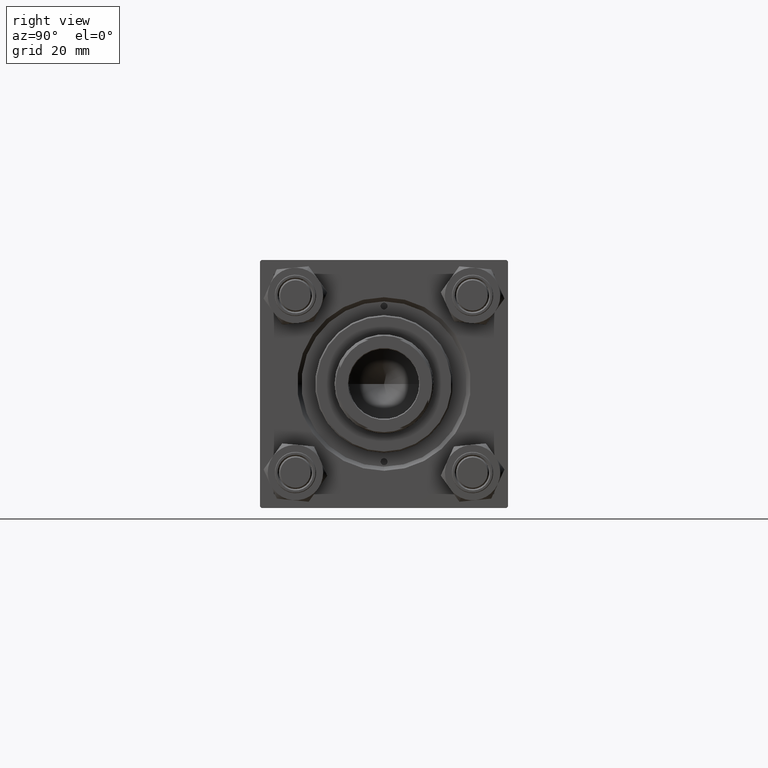
[diagram: clean part render]
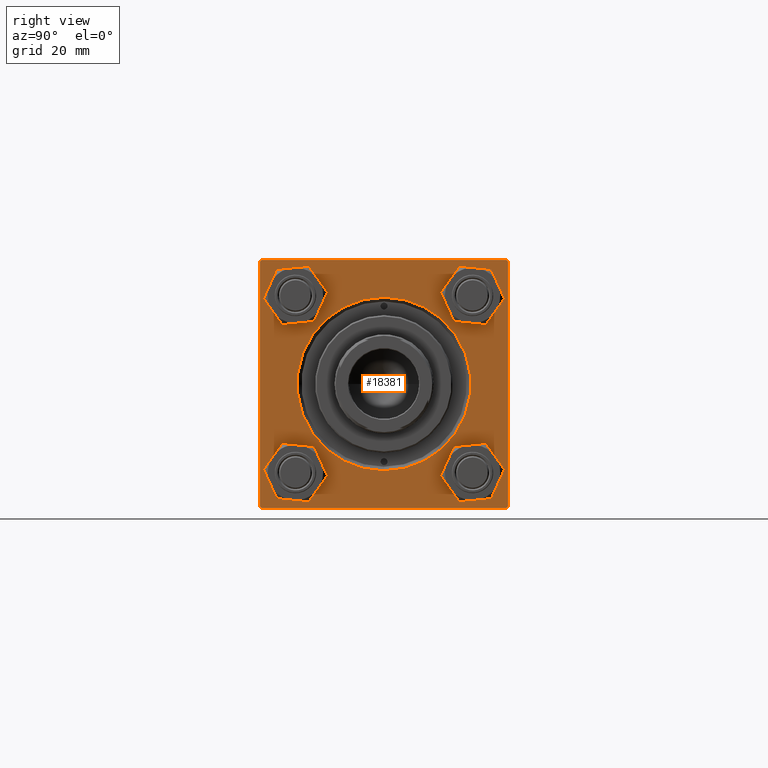
[diagram: same view with one face highlighted and labeled with its STEP entity id]
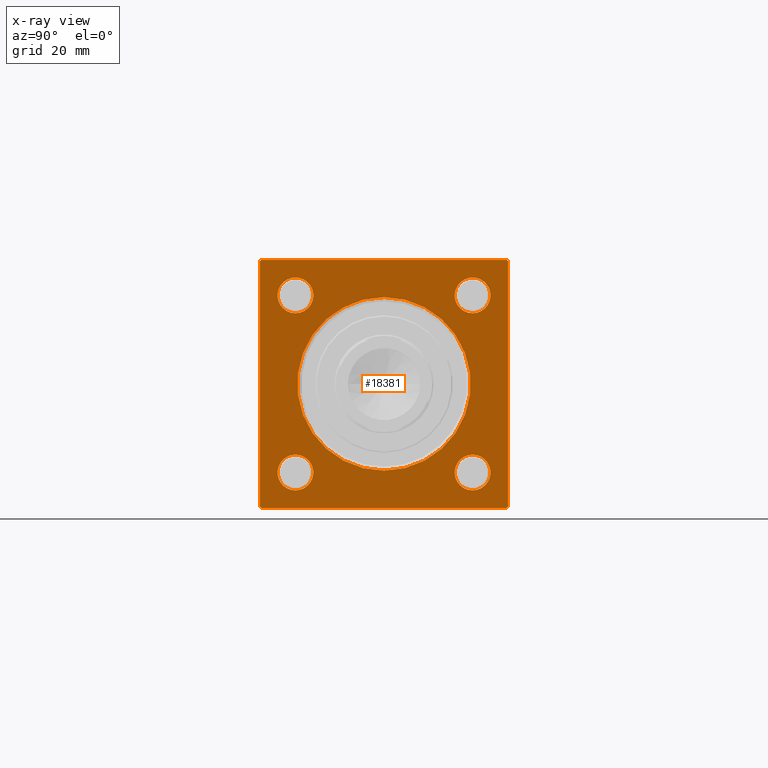
[diagram: x-ray of the same camera — body ghosted, the highlighted face saturated]
A machine part, right view. The second image highlights one B-rep face of the part: STEP entity #18381.
The next image is the same camera in x-ray: the body ghosted, the highlighted face saturated — about 0% of this face is hidden behind the body in this view.
In plain terms, the highlighted planar face has unit normal (-1, 0, 0).
Its self-contained STEP definition (entity closure, byte-faithful):
#450 = VERTEX_POINT ( 'NONE', #44718 ) ;
#1075 = CARTESIAN_POINT ( 'NONE',  ( 155.0000000000000000, 0.000000000000000000, 0.000000000000000000 ) ) ;
#1373 = EDGE_LOOP ( 'NONE', ( #2650, #42296 ) ) ;
#1707 = LINE ( 'NONE', #5979, #36624 ) ;
#1844 = DIRECTION ( 'NONE',  ( -1.000000000000000000, -0.000000000000000000, -0.000000000000000000 ) ) ;
#2018 = VERTEX_POINT ( 'NONE', #31920 ) ;
#2650 = ORIENTED_EDGE ( 'NONE', *, *, #15215, .T. ) ;
#2767 = VECTOR ( 'NONE', #14427, 1000.000000000000000 ) ;
#3015 = DIRECTION ( 'NONE',  ( 0.000000000000000000, 0.000000000000000000, 1.000000000000000000 ) ) ;
#3090 = VERTEX_POINT ( 'NONE', #26521 ) ;
#3573 = FACE_BOUND ( 'NONE', #11238, .T. ) ;
#3862 = DIRECTION ( 'NONE',  ( 0.000000000000000000, 0.000000000000000000, -1.000000000000000000 ) ) ;
#3996 = DIRECTION ( 'NONE',  ( 0.000000000000000000, 0.000000000000000000, 1.000000000000000000 ) ) ;
#4157 = ORIENTED_EDGE ( 'NONE', *, *, #26422, .T. ) ;
#4374 = DIRECTION ( 'NONE',  ( 0.000000000000000000, 0.000000000000000000, 1.000000000000000000 ) ) ;
#4737 = CARTESIAN_POINT ( 'NONE',  ( 155.0000000000000000, 32.14999999999999147, -25.64999999999994529 ) ) ;
#4952 = CARTESIAN_POINT ( 'NONE',  ( 155.0000000000000000, 45.00000000000001421, -44.49999999999997158 ) ) ;
#4963 = VERTEX_POINT ( 'NONE', #49618 ) ;
#5341 = AXIS2_PLACEMENT_3D ( 'NONE', #23153, #46650, #3996 ) ;
#5364 = CARTESIAN_POINT ( 'NONE',  ( 155.0000000000000000, 32.14999999999999147, 32.15000000000000568 ) ) ;
#5404 = ORIENTED_EDGE ( 'NONE', *, *, #16303, .T. ) ;
#5794 = EDGE_CURVE ( 'NONE', #16152, #41936, #30278, .T. ) ;
#5875 = DIRECTION ( 'NONE',  ( 0.000000000000000000, 0.000000000000000000, 1.000000000000000000 ) ) ;
#5979 = CARTESIAN_POINT ( 'NONE',  ( 155.0000000000000000, 45.00000000000001421, -45.00000000000000000 ) ) ;
#6109 = DIRECTION ( 'NONE',  ( 0.000000000000000000, 0.000000000000000000, 1.000000000000000000 ) ) ;
#6962 = EDGE_LOOP ( 'NONE', ( #47357, #5404 ) ) ;
#7007 = VECTOR ( 'NONE', #23520, 1000.000000000000000 ) ;
#7133 = CARTESIAN_POINT ( 'NONE',  ( 155.0000000000000000, 44.49999999999998579, 45.00000000000000000 ) ) ;
#7755 = CARTESIAN_POINT ( 'NONE',  ( 155.0000000000000000, 3.857637417314162689E-15, 31.50000000000000000 ) ) ;
#8144 = ORIENTED_EDGE ( 'NONE', *, *, #22962, .T. ) ;
#8366 = CARTESIAN_POINT ( 'NONE',  ( 155.0000000000000000, -32.14999999999997726, 32.15000000000001279 ) ) ;
#8423 = AXIS2_PLACEMENT_3D ( 'NONE', #49523, #26516, #37425 ) ;
#8659 = EDGE_CURVE ( 'NONE', #18554, #48266, #30132, .T. ) ;
#8729 = ORIENTED_EDGE ( 'NONE', *, *, #21036, .T. ) ;
#9004 = DIRECTION ( 'NONE',  ( 0.000000000000000000, 0.000000000000000000, 1.000000000000000000 ) ) ;
#9283 = CARTESIAN_POINT ( 'NONE',  ( 155.0000000000000000, 32.14999999999999147, -32.15000000000000568 ) ) ;
#9308 = CIRCLE ( 'NONE', #34288, 31.50000000000000000 ) ;
#9648 = LINE ( 'NONE', #17469, #18229 ) ;
#9826 = CARTESIAN_POINT ( 'NONE',  ( 155.0000000000000000, -32.14999999999997726, -32.15000000000001279 ) ) ;
#10385 = CARTESIAN_POINT ( 'NONE',  ( 155.0000000000000000, -44.49999999999992895, -45.00000000000000000 ) ) ;
#10641 = CIRCLE ( 'NONE', #38838, 6.500000000000061284 ) ;
#10974 = DIRECTION ( 'NONE',  ( -0.000000000000000000, -0.7071067811865474617, -0.7071067811865474617 ) ) ;
#11189 = CARTESIAN_POINT ( 'NONE',  ( 155.0000000000000000, 45.00000000000001421, 45.00000000000000000 ) ) ;
#11192 = CARTESIAN_POINT ( 'NONE',  ( 155.0000000000000000, -45.00000000000000000, 44.99999999999998579 ) ) ;
#11238 = EDGE_LOOP ( 'NONE', ( #8729, #28103 ) ) ;
#12151 = EDGE_CURVE ( 'NONE', #49901, #16003, #10641, .T. ) ;
#12277 = CARTESIAN_POINT ( 'NONE',  ( 155.0000000000000000, -32.14999999999997726, -38.65000000000007674 ) ) ;
#12942 = ORIENTED_EDGE ( 'NONE', *, *, #22224, .T. ) ;
#13149 = CARTESIAN_POINT ( 'NONE',  ( 155.0000000000000000, -44.49999999999994316, 44.99999999999998579 ) ) ;
#13354 = CARTESIAN_POINT ( 'NONE',  ( 155.0000000000000000, 44.49999999999998579, 45.00000000000000000 ) ) ;
#13367 = DIRECTION ( 'NONE',  ( -1.000000000000000000, -0.000000000000000000, -0.000000000000000000 ) ) ;
#13412 = CIRCLE ( 'NONE', #5341, 6.500000000000061284 ) ;
#13413 = EDGE_CURVE ( 'NONE', #15645, #20741, #41719, .T. ) ;
#13891 = VECTOR ( 'NONE', #18020, 1000.000000000000114 ) ;
#14427 = DIRECTION ( 'NONE',  ( 0.000000000000000000, 0.7071067811865524577, -0.7071067811865426878 ) ) ;
#14814 = CARTESIAN_POINT ( 'NONE',  ( 155.0000000000000000, -44.49999999999990052, -45.00000000000000000 ) ) ;
#15215 = EDGE_CURVE ( 'NONE', #16003, #49901, #42182, .T. ) ;
#15645 = VERTEX_POINT ( 'NONE', #28740 ) ;
#16001 = CARTESIAN_POINT ( 'NONE',  ( 155.0000000000000000, 32.14999999999999147, 25.64999999999994529 ) ) ;
#16003 = VERTEX_POINT ( 'NONE', #12277 ) ;
#16027 = AXIS2_PLACEMENT_3D ( 'NONE', #1075, #42486, #4374 ) ;
#16152 = VERTEX_POINT ( 'NONE', #18471 ) ;
#16303 = EDGE_CURVE ( 'NONE', #4963, #17586, #46229, .T. ) ;
#17451 = CIRCLE ( 'NONE', #31933, 6.500000000000061284 ) ;
#17469 = CARTESIAN_POINT ( 'NONE',  ( 155.0000000000000000, 45.00000000000001421, -44.50000000000000000 ) ) ;
#17586 = VERTEX_POINT ( 'NONE', #49423 ) ;
#17687 = EDGE_CURVE ( 'NONE', #2018, #41936, #1707, .T. ) ;
#18020 = DIRECTION ( 'NONE',  ( 0.000000000000000000, -0.7071067811865474617, 0.7071067811865474617 ) ) ;
#18208 = DIRECTION ( 'NONE',  ( -1.000000000000000000, -0.000000000000000000, -0.000000000000000000 ) ) ;
#18229 = VECTOR ( 'NONE', #43474, 1000.000000000000114 ) ;
#18381 = ADVANCED_FACE ( 'NONE', ( #35914, #38144, #49042, #33862, #3573, #37662 ), #33625, .F. ) ;
#18471 = CARTESIAN_POINT ( 'NONE',  ( 155.0000000000000000, -44.99999999999999289, -44.49999999999991473 ) ) ;
#18554 = VERTEX_POINT ( 'NONE', #13149 ) ;
#18968 = VERTEX_POINT ( 'NONE', #21401 ) ;
#19028 = VECTOR ( 'NONE', #3862, 1000.000000000000000 ) ;
#19149 = AXIS2_PLACEMENT_3D ( 'NONE', #48293, #18208, #6109 ) ;
#19818 = ORIENTED_EDGE ( 'NONE', *, *, #17687, .F. ) ;
#20343 = CARTESIAN_POINT ( 'NONE',  ( 155.0000000000000000, 0.000000000000000000, 0.000000000000000000 ) ) ;
#20736 = DIRECTION ( 'NONE',  ( 0.000000000000000000, -1.000000000000000000, -1.541976423090495140E-16 ) ) ;
#20741 = VERTEX_POINT ( 'NONE', #13354 ) ;
#21036 = EDGE_CURVE ( 'NONE', #18968, #23935, #9308, .T. ) ;
#21401 = CARTESIAN_POINT ( 'NONE',  ( 155.0000000000000000, 0.000000000000000000, -31.50000000000000000 ) ) ;
#21479 = CIRCLE ( 'NONE', #27887, 6.500000000000061284 ) ;
#21923 = VECTOR ( 'NONE', #10974, 1000.000000000000114 ) ;
#22178 = EDGE_CURVE ( 'NONE', #20741, #18554, #25024, .T. ) ;
#22224 = EDGE_CURVE ( 'NONE', #2018, #39396, #9648, .T. ) ;
#22641 = CARTESIAN_POINT ( 'NONE',  ( 155.0000000000000000, -32.14999999999997726, -25.64999999999994884 ) ) ;
#22662 = DIRECTION ( 'NONE',  ( -1.000000000000000000, -0.000000000000000000, -0.000000000000000000 ) ) ;
#22962 = EDGE_CURVE ( 'NONE', #450, #38852, #23854, .T. ) ;
#23153 = CARTESIAN_POINT ( 'NONE',  ( 155.0000000000000000, 32.14999999999999147, 32.15000000000000568 ) ) ;
#23245 = DIRECTION ( 'NONE',  ( 0.000000000000000000, 0.000000000000000000, 1.000000000000000000 ) ) ;
#23520 = DIRECTION ( 'NONE',  ( 0.000000000000000000, 7.709882115452478166E-17, -1.000000000000000000 ) ) ;
#23732 = DIRECTION ( 'NONE',  ( -1.000000000000000000, -0.000000000000000000, -0.000000000000000000 ) ) ;
#23820 = VECTOR ( 'NONE', #20736, 1000.000000000000000 ) ;
#23854 = CIRCLE ( 'NONE', #26279, 6.500000000000061284 ) ;
#23894 = DIRECTION ( 'NONE',  ( -1.000000000000000000, -0.000000000000000000, -0.000000000000000000 ) ) ;
#23935 = VERTEX_POINT ( 'NONE', #7755 ) ;
#24252 = EDGE_CURVE ( 'NONE', #48266, #16152, #34914, .T. ) ;
#24457 = AXIS2_PLACEMENT_3D ( 'NONE', #8366, #23732, #23245 ) ;
#24769 = CARTESIAN_POINT ( 'NONE',  ( 155.0000000000000000, 45.00000000000001421, 45.00000000000000000 ) ) ;
#25024 = LINE ( 'NONE', #24769, #23820 ) ;
#25441 = DIRECTION ( 'NONE',  ( 0.000000000000000000, 0.000000000000000000, 1.000000000000000000 ) ) ;
#26071 = LINE ( 'NONE', #11189, #19028 ) ;
#26196 = EDGE_CURVE ( 'NONE', #38852, #450, #13412, .T. ) ;
#26279 = AXIS2_PLACEMENT_3D ( 'NONE', #5364, #1844, #5875 ) ;
#26422 = EDGE_CURVE ( 'NONE', #37311, #3090, #17451, .T. ) ;
#26516 = DIRECTION ( 'NONE',  ( -1.000000000000000000, 0.000000000000000000, -0.000000000000000000 ) ) ;
#26521 = CARTESIAN_POINT ( 'NONE',  ( 155.0000000000000000, 32.14999999999999147, -38.65000000000006963 ) ) ;
#26582 = ORIENTED_EDGE ( 'NONE', *, *, #13413, .T. ) ;
#27138 = EDGE_CURVE ( 'NONE', #17586, #4963, #21479, .T. ) ;
#27184 = CIRCLE ( 'NONE', #19149, 6.500000000000061284 ) ;
#27887 = AXIS2_PLACEMENT_3D ( 'NONE', #49215, #22662, #3015 ) ;
#28103 = ORIENTED_EDGE ( 'NONE', *, *, #46639, .T. ) ;
#28740 = CARTESIAN_POINT ( 'NONE',  ( 155.0000000000000000, 45.00000000000001421, 44.49999999999997158 ) ) ;
#28869 = EDGE_LOOP ( 'NONE', ( #35085, #35023, #19818, #12942, #36698, #26582, #41726, #33711 ) ) ;
#28910 = EDGE_LOOP ( 'NONE', ( #28925, #4157 ) ) ;
#28925 = ORIENTED_EDGE ( 'NONE', *, *, #30137, .T. ) ;
#30132 = LINE ( 'NONE', #45545, #21923 ) ;
#30137 = EDGE_CURVE ( 'NONE', #3090, #37311, #27184, .T. ) ;
#30278 = LINE ( 'NONE', #10385, #2767 ) ;
#31338 = CIRCLE ( 'NONE', #16027, 31.50000000000000000 ) ;
#31920 = CARTESIAN_POINT ( 'NONE',  ( 155.0000000000000000, 44.50000000000001421, -45.00000000000000000 ) ) ;
#31933 = AXIS2_PLACEMENT_3D ( 'NONE', #9283, #23894, #39300 ) ;
#33625 = PLANE ( 'NONE',  #8423 ) ;
#33711 = ORIENTED_EDGE ( 'NONE', *, *, #8659, .T. ) ;
#33862 = FACE_BOUND ( 'NONE', #6962, .T. ) ;
#34288 = AXIS2_PLACEMENT_3D ( 'NONE', #20343, #36260, #9004 ) ;
#34914 = LINE ( 'NONE', #11192, #7007 ) ;
#35023 = ORIENTED_EDGE ( 'NONE', *, *, #5794, .T. ) ;
#35085 = ORIENTED_EDGE ( 'NONE', *, *, #24252, .T. ) ;
#35914 = FACE_BOUND ( 'NONE', #1373, .T. ) ;
#36260 = DIRECTION ( 'NONE',  ( -1.000000000000000000, -0.000000000000000000, -0.000000000000000000 ) ) ;
#36624 = VECTOR ( 'NONE', #39794, 1000.000000000000000 ) ;
#36698 = ORIENTED_EDGE ( 'NONE', *, *, #40152, .F. ) ;
#37311 = VERTEX_POINT ( 'NONE', #4737 ) ;
#37425 = DIRECTION ( 'NONE',  ( -0.000000000000000000, 0.000000000000000000, 1.000000000000000000 ) ) ;
#37662 = FACE_OUTER_BOUND ( 'NONE', #28869, .T. ) ;
#38144 = FACE_BOUND ( 'NONE', #28910, .T. ) ;
#38838 = AXIS2_PLACEMENT_3D ( 'NONE', #9826, #13367, #25441 ) ;
#38852 = VERTEX_POINT ( 'NONE', #16001 ) ;
#39300 = DIRECTION ( 'NONE',  ( 0.000000000000000000, 0.000000000000000000, 1.000000000000000000 ) ) ;
#39396 = VERTEX_POINT ( 'NONE', #4952 ) ;
#39794 = DIRECTION ( 'NONE',  ( 0.000000000000000000, -1.000000000000000000, 0.000000000000000000 ) ) ;
#40152 = EDGE_CURVE ( 'NONE', #15645, #39396, #26071, .T. ) ;
#40580 = AXIS2_PLACEMENT_3D ( 'NONE', #41939, #49527, #49772 ) ;
#41719 = LINE ( 'NONE', #7133, #13891 ) ;
#41726 = ORIENTED_EDGE ( 'NONE', *, *, #22178, .T. ) ;
#41936 = VERTEX_POINT ( 'NONE', #14814 ) ;
#41939 = CARTESIAN_POINT ( 'NONE',  ( 155.0000000000000000, -32.14999999999997726, -32.15000000000001279 ) ) ;
#42124 = CARTESIAN_POINT ( 'NONE',  ( 155.0000000000000000, -45.00000000000000000, 44.49999999999995737 ) ) ;
#42182 = CIRCLE ( 'NONE', #40580, 6.500000000000061284 ) ;
#42296 = ORIENTED_EDGE ( 'NONE', *, *, #12151, .T. ) ;
#42486 = DIRECTION ( 'NONE',  ( -1.000000000000000000, -0.000000000000000000, -0.000000000000000000 ) ) ;
#43474 = DIRECTION ( 'NONE',  ( -0.000000000000000000, 0.7071067811865474617, 0.7071067811865474617 ) ) ;
#44718 = CARTESIAN_POINT ( 'NONE',  ( 155.0000000000000000, 32.14999999999999147, 38.65000000000007674 ) ) ;
#45545 = CARTESIAN_POINT ( 'NONE',  ( 155.0000000000000000, -45.00000000000000000, 44.49999999999995737 ) ) ;
#46229 = CIRCLE ( 'NONE', #24457, 6.500000000000061284 ) ;
#46639 = EDGE_CURVE ( 'NONE', #23935, #18968, #31338, .T. ) ;
#46650 = DIRECTION ( 'NONE',  ( -1.000000000000000000, -0.000000000000000000, -0.000000000000000000 ) ) ;
#47357 = ORIENTED_EDGE ( 'NONE', *, *, #27138, .T. ) ;
#48266 = VERTEX_POINT ( 'NONE', #42124 ) ;
#48293 = CARTESIAN_POINT ( 'NONE',  ( 155.0000000000000000, 32.14999999999999147, -32.15000000000000568 ) ) ;
#48535 = EDGE_LOOP ( 'NONE', ( #49836, #8144 ) ) ;
#49042 = FACE_BOUND ( 'NONE', #48535, .T. ) ;
#49215 = CARTESIAN_POINT ( 'NONE',  ( 155.0000000000000000, -32.14999999999997726, 32.15000000000001279 ) ) ;
#49423 = CARTESIAN_POINT ( 'NONE',  ( 155.0000000000000000, -32.14999999999997726, 25.64999999999994884 ) ) ;
#49523 = CARTESIAN_POINT ( 'NONE',  ( 155.0000000000000000, 0.000000000000000000, 0.000000000000000000 ) ) ;
#49527 = DIRECTION ( 'NONE',  ( -1.000000000000000000, -0.000000000000000000, -0.000000000000000000 ) ) ;
#49618 = CARTESIAN_POINT ( 'NONE',  ( 155.0000000000000000, -32.14999999999997726, 38.65000000000007674 ) ) ;
#49772 = DIRECTION ( 'NONE',  ( 0.000000000000000000, 0.000000000000000000, 1.000000000000000000 ) ) ;
#49836 = ORIENTED_EDGE ( 'NONE', *, *, #26196, .T. ) ;
#49901 = VERTEX_POINT ( 'NONE', #22641 ) ;